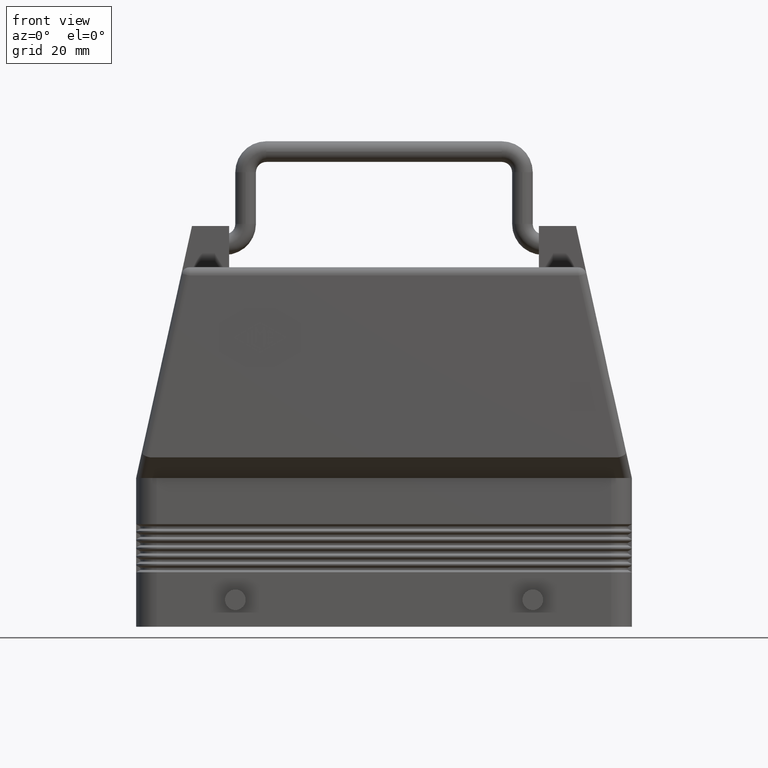
[diagram: clean part render]
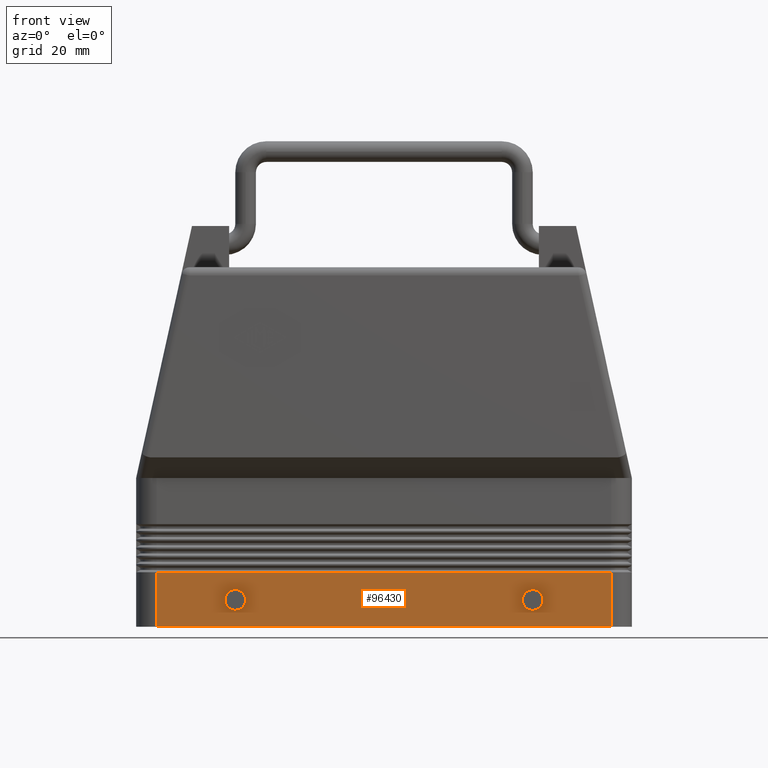
[diagram: same view with one face highlighted and labeled with its STEP entity id]
A machine part, front view. The second image highlights one B-rep face of the part: STEP entity #96430.
In plain terms, the highlighted planar face has unit normal (0, 1, 0).
Its self-contained STEP definition (entity closure, byte-faithful):
#20510=CARTESIAN_POINT('',(38.5,-21.5,6.5));
#20520=VERTEX_POINT('',#20510);
#20700=CARTESIAN_POINT('',(33.5,-21.5,6.5));
#20710=VERTEX_POINT('',#20700);
#20740=CARTESIAN_POINT('',(36.,-21.5,6.5));
#20750=DIRECTION('',(0.,1.,0.));
#20760=DIRECTION('',(-1.,0.,0.));
#20770=AXIS2_PLACEMENT_3D('',#20740,#20750,#20760);
#20780=CIRCLE('',#20770,2.5);
#20790=EDGE_CURVE('',#20710,#20520,#20780,.T.);
#21000=CARTESIAN_POINT('',(-33.5,-21.5,6.5));
#21010=VERTEX_POINT('',#21000);
#21060=CARTESIAN_POINT('',(-36.,-21.5,6.5));
#21070=DIRECTION('',(0.,1.,0.));
#21080=DIRECTION('',(-1.,0.,0.));
#21090=AXIS2_PLACEMENT_3D('',#21060,#21070,#21080);
#21100=CIRCLE('',#21090,2.5);
#21110=CARTESIAN_POINT('',(-38.5,-21.5,6.5));
#21120=VERTEX_POINT('',#21110);
#21130=EDGE_CURVE('',#21010,#21120,#21100,.T.);
#28460=CARTESIAN_POINT('',(-55.,-21.5,13.1726497308104));
#28470=VERTEX_POINT('',#28460);
#28500=CARTESIAN_POINT('',(-55.,-21.5,2.127927E-14));
#28510=DIRECTION('',(0.,0.,1.));
#28520=VECTOR('',#28510,13.1726497308104);
#28530=LINE('',#28500,#28520);
#28540=CARTESIAN_POINT('',(-55.,-21.5,2.127927E-14));
#28550=VERTEX_POINT('',#28540);
#28560=EDGE_CURVE('',#28550,#28470,#28530,.T.);
#28950=CARTESIAN_POINT('',(55.,-21.5,9.251859E-16));
#28960=VERTEX_POINT('',#28950);
#28990=CARTESIAN_POINT('',(55.,-21.5,13.1726497308104));
#29000=DIRECTION('',(0.,0.,-1.));
#29010=VECTOR('',#29000,13.1726497308104);
#29020=LINE('',#28990,#29010);
#29030=CARTESIAN_POINT('',(55.,-21.5,13.1726497308104));
#29040=VERTEX_POINT('',#29030);
#29050=EDGE_CURVE('',#29040,#28960,#29020,.T.);
#90960=CARTESIAN_POINT('',(55.,-21.5,13.1726497308104));
#90970=DIRECTION('',(-1.,0.,0.));
#90980=VECTOR('',#90970,110.);
#90990=LINE('',#90960,#90980);
#91000=EDGE_CURVE('',#29040,#28470,#90990,.T.);
#95210=CARTESIAN_POINT('',(55.,-21.5,9.251859E-16));
#95220=DIRECTION('',(-1.,0.,0.));
#95230=VECTOR('',#95220,110.);
#95240=LINE('',#95210,#95230);
#95250=EDGE_CURVE('',#28960,#28550,#95240,.T.);
#96220=CARTESIAN_POINT('',(3.330669E-15,-21.5,18.));
#96230=DIRECTION('',(0.,1.,0.));
#96240=DIRECTION('',(0.,0.,1.));
#96250=AXIS2_PLACEMENT_3D('',#96220,#96230,#96240);
#96260=PLANE('',#96250);
#96270=ORIENTED_EDGE('',*,*,#29050,.F.);
#96280=ORIENTED_EDGE('',*,*,#95250,.F.);
#96290=ORIENTED_EDGE('',*,*,#28560,.F.);
#96300=ORIENTED_EDGE('',*,*,#91000,.T.);
#96310=EDGE_LOOP('',(#96300,#96290,#96280,#96270));
#96320=FACE_OUTER_BOUND('',#96310,.T.);
#96330=EDGE_CURVE('',#20520,#20710,#20780,.T.);
#96340=ORIENTED_EDGE('',*,*,#96330,.T.);
#96350=ORIENTED_EDGE('',*,*,#20790,.T.);
#96360=EDGE_LOOP('',(#96350,#96340));
#96370=FACE_BOUND('',#96360,.T.);
#96380=ORIENTED_EDGE('',*,*,#21130,.T.);
#96390=EDGE_CURVE('',#21120,#21010,#21100,.T.);
#96400=ORIENTED_EDGE('',*,*,#96390,.T.);
#96410=EDGE_LOOP('',(#96400,#96380));
#96420=FACE_BOUND('',#96410,.T.);
#96430=ADVANCED_FACE('',(#96320,#96370,#96420),#96260,.F.);